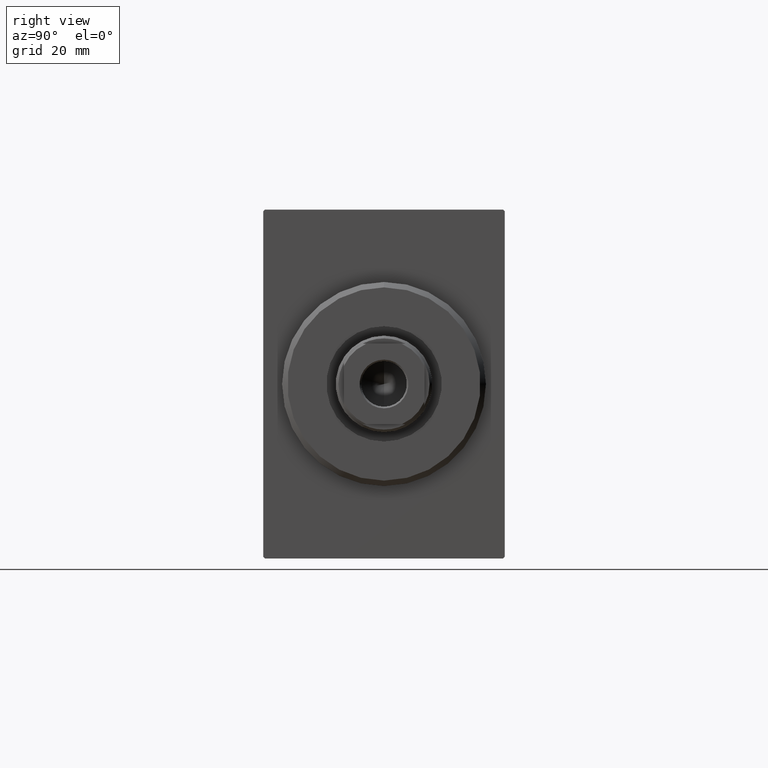
[diagram: clean part render]
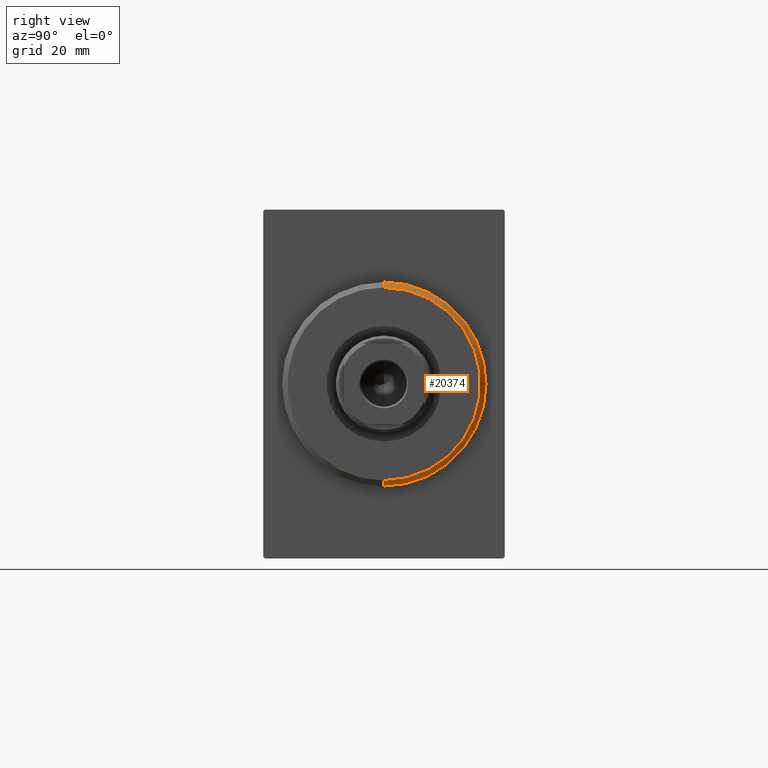
[diagram: same view with one face highlighted and labeled with its STEP entity id]
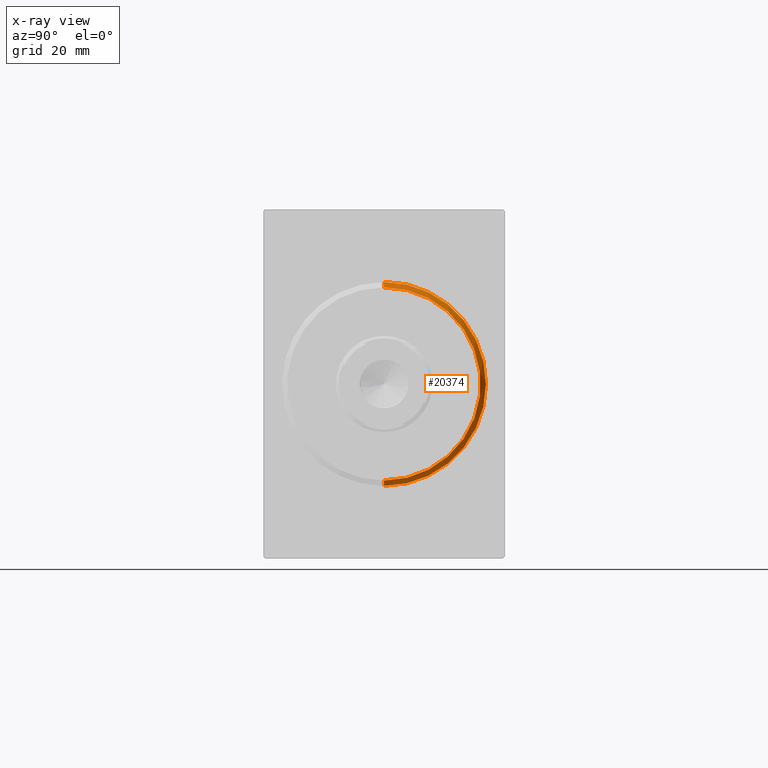
[diagram: x-ray of the same camera — body ghosted, the highlighted face saturated]
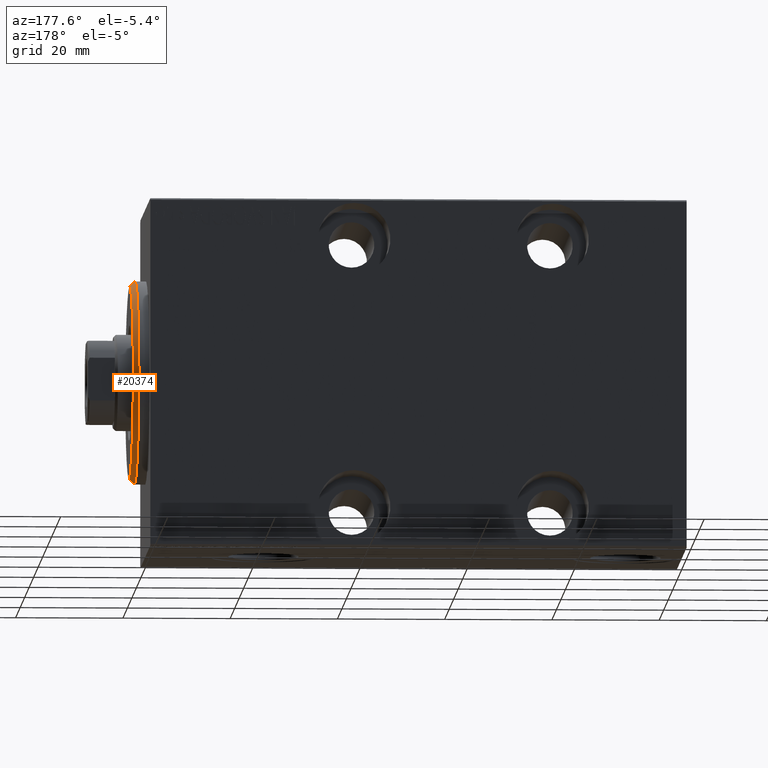
[diagram: same view with one face highlighted and labeled with its STEP entity id]
A machine part, right view. The second image highlights one B-rep face of the part: STEP entity #20374.
The next image is the same camera in x-ray: the body ghosted, the highlighted face saturated — about 0% of this face is hidden behind the body in this view.
A second angle (auxiliary view) of the same face is appended — the face is thin or edge-on in the first view.
In plain terms, the highlighted conical surface has half-angle 45 deg.
Its self-contained STEP definition (entity closure, byte-faithful):
#254 = DIRECTION ( 'NONE',  ( -0.7071067811865487940, 8.659560562354918067E-17, -0.7071067811865463515 ) ) ;
#656 = CARTESIAN_POINT ( 'NONE',  ( 3.000000000000000000, 0.000000000000000000, 17.99999999999999645 ) ) ;
#2173 = ORIENTED_EDGE ( 'NONE', *, *, #2788, .F. ) ;
#2788 = EDGE_CURVE ( 'NONE', #39720, #3820, #36082, .T. ) ;
#3228 = EDGE_CURVE ( 'NONE', #23581, #39720, #7361, .T. ) ;
#3572 = CARTESIAN_POINT ( 'NONE',  ( 1.999999999999992228, 0.000000000000000000, 19.00000000000000000 ) ) ;
#3820 = VERTEX_POINT ( 'NONE', #3572 ) ;
#7346 = DIRECTION ( 'NONE',  ( -1.000000000000000000, 0.000000000000000000, 0.000000000000000000 ) ) ;
#7361 = CIRCLE ( 'NONE', #26188, 17.99999999999999645 ) ;
#9008 = VERTEX_POINT ( 'NONE', #13081 ) ;
#9982 = CARTESIAN_POINT ( 'NONE',  ( 1.999999999999992228, 0.000000000000000000, 0.000000000000000000 ) ) ;
#10921 = VECTOR ( 'NONE', #13122, 1000.000000000000000 ) ;
#11667 = CONICAL_SURFACE ( 'NONE', #31185, 17.99999999999999645, 0.7853981633974466137 ) ;
#12603 = DIRECTION ( 'NONE',  ( 0.000000000000000000, 0.000000000000000000, 1.000000000000000000 ) ) ;
#13027 = FACE_OUTER_BOUND ( 'NONE', #28034, .T. ) ;
#13081 = CARTESIAN_POINT ( 'NONE',  ( 1.999999999999992228, 2.326828918379970970E-15, -19.00000000000000000 ) ) ;
#13122 = DIRECTION ( 'NONE',  ( -0.7071067811865487940, 0.000000000000000000, 0.7071067811865463515 ) ) ;
#14163 = EDGE_CURVE ( 'NONE', #3820, #9008, #25530, .T. ) ;
#16615 = CARTESIAN_POINT ( 'NONE',  ( 3.000000000000000000, 0.000000000000000000, 17.99999999999999645 ) ) ;
#17852 = ORIENTED_EDGE ( 'NONE', *, *, #14163, .F. ) ;
#20209 = ORIENTED_EDGE ( 'NONE', *, *, #3228, .F. ) ;
#20374 = ADVANCED_FACE ( 'NONE', ( #13027 ), #11667, .T. ) ;
#23581 = VERTEX_POINT ( 'NONE', #31081 ) ;
#25530 = CIRCLE ( 'NONE', #38837, 19.00000000000000000 ) ;
#26188 = AXIS2_PLACEMENT_3D ( 'NONE', #26806, #40164, #37095 ) ;
#26806 = CARTESIAN_POINT ( 'NONE',  ( 3.000000000000000000, 0.000000000000000000, 0.000000000000000000 ) ) ;
#27626 = EDGE_CURVE ( 'NONE', #23581, #9008, #30177, .T. ) ;
#28034 = EDGE_LOOP ( 'NONE', ( #20209, #40740, #17852, #2173 ) ) ;
#30177 = LINE ( 'NONE', #40237, #39033 ) ;
#31081 = CARTESIAN_POINT ( 'NONE',  ( 3.000000000000000000, 2.265596578422603002E-15, -17.99999999999999645 ) ) ;
#31185 = AXIS2_PLACEMENT_3D ( 'NONE', #42570, #36206, #12603 ) ;
#36082 = LINE ( 'NONE', #16615, #10921 ) ;
#36206 = DIRECTION ( 'NONE',  ( -1.000000000000000000, 0.000000000000000000, 0.000000000000000000 ) ) ;
#37095 = DIRECTION ( 'NONE',  ( 0.000000000000000000, 0.000000000000000000, -1.000000000000000000 ) ) ;
#38837 = AXIS2_PLACEMENT_3D ( 'NONE', #9982, #7346, #40136 ) ;
#39033 = VECTOR ( 'NONE', #254, 1000.000000000000000 ) ;
#39720 = VERTEX_POINT ( 'NONE', #656 ) ;
#40136 = DIRECTION ( 'NONE',  ( 0.000000000000000000, 0.000000000000000000, -1.000000000000000000 ) ) ;
#40164 = DIRECTION ( 'NONE',  ( 1.000000000000000000, -0.000000000000000000, 0.000000000000000000 ) ) ;
#40237 = CARTESIAN_POINT ( 'NONE',  ( 3.000000000000000000, 2.204364238465235033E-15, -17.99999999999999645 ) ) ;
#40740 = ORIENTED_EDGE ( 'NONE', *, *, #27626, .T. ) ;
#42570 = CARTESIAN_POINT ( 'NONE',  ( 3.000000000000000000, 0.000000000000000000, 0.000000000000000000 ) ) ;